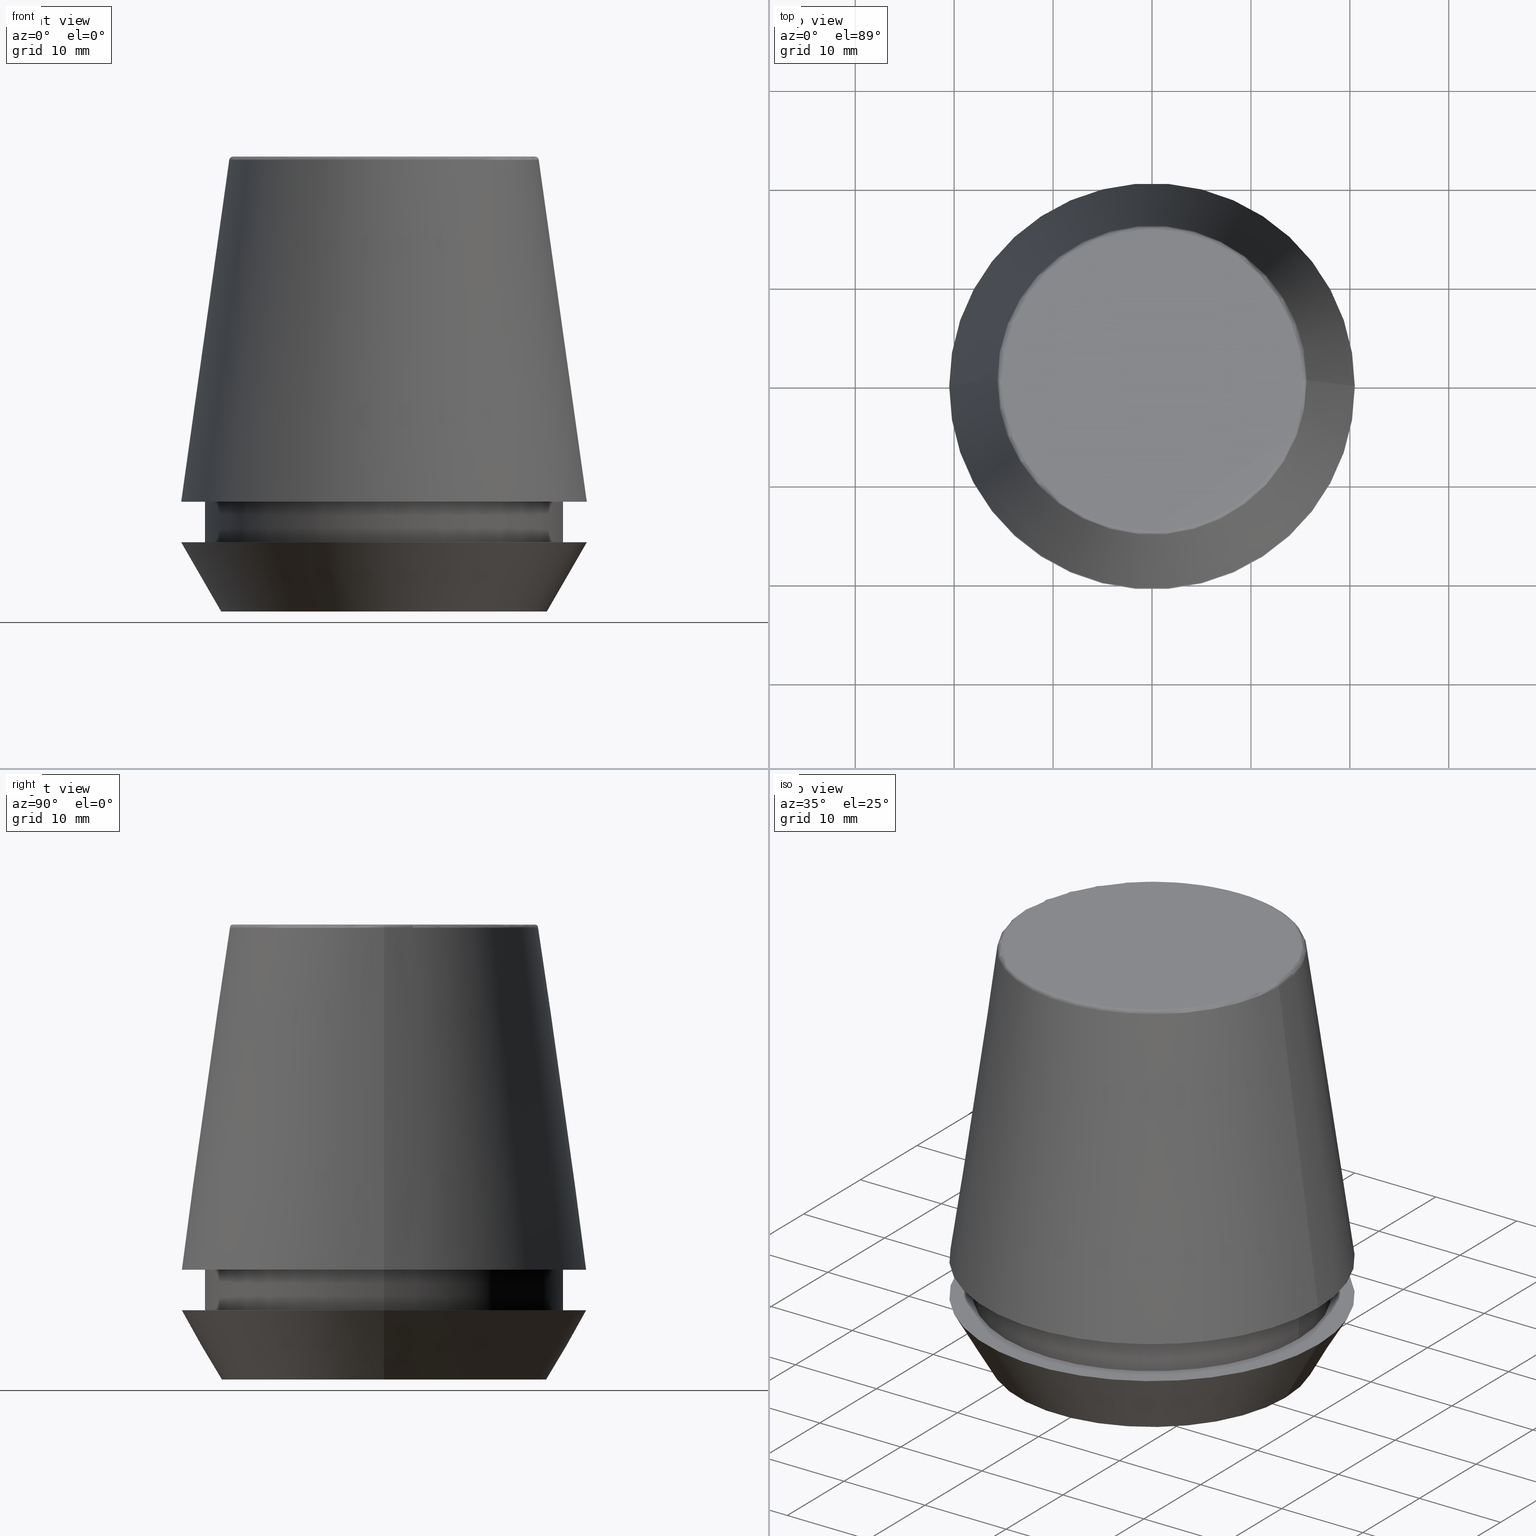
[diagram: canonical four-view strip — front | top / right | iso, engineering-drawing reading convention]
A machine part, canonical four-view strip (front | top / right | iso — engineering-drawing reading convention). The complete STEP part file that produces these views, byte-faithful:
ISO-10303-21;
HEADER;
FILE_DESCRIPTION (( 'STEP AP203' ),
    '1' );
FILE_NAME ('TAP COLLET ER 40G 25.0 X 20.0.STEP',
    '2019-04-10T04:23:19',
    ( '' ),
    ( '' ),
    'SwSTEP 2.0',
    'SolidWorks 2014',
    '' );
FILE_SCHEMA (( 'CONFIG_CONTROL_DESIGN' ));
ENDSEC;

DATA;
#1 = AXIS2_PLACEMENT_3D ( 'NONE', #111, #240, #364 ) ;
#2 = LINE ( 'NONE', #372, #235 ) ;
#3 = DATE_AND_TIME ( #81, #169 ) ;
#4 = EDGE_CURVE ( 'NONE', #14, #268, #61, .T. ) ;
#5 = CARTESIAN_POINT ( 'NONE',  ( 18.10000000000000100, 0.0000000000000000000, 6.999999999999999100 ) ) ;
#6 = AXIS2_PLACEMENT_3D ( 'NONE', #228, #216, #329 ) ;
#7 = CIRCLE ( 'NONE', #328, 15.64384277279740400 ) ;
#8 = CARTESIAN_POINT ( 'NONE',  ( 0.0000000000000000000, 20.50032537154048700, 11.09999999999999800 ) ) ;
#9 = ADVANCED_FACE ( 'NONE', ( #378 ), #363, .T. ) ;
#10 = PERSON_AND_ORGANIZATION_ROLE ( 'design_owner' ) ;
#11 = CIRCLE ( 'NONE', #359, 18.10000000000000100 ) ;
#12 = ORIENTED_EDGE ( 'NONE', *, *, #76, .F. ) ;
#13 = DIRECTION ( 'NONE',  ( -0.0000000000000000000, -0.0000000000000000000, 1.000000000000000000 ) ) ;
#14 = VERTEX_POINT ( 'NONE', #238 ) ;
#15 = EDGE_CURVE ( 'NONE', #303, #247, #224, .T. ) ;
#16 = PERSON_AND_ORGANIZATION ( #310, #353 ) ;
#17 = DIRECTION ( 'NONE',  ( 0.1391731009600587200, 1.704378926181473400E-017, -0.9902680687415712500 ) ) ;
#18 = CARTESIAN_POINT ( 'NONE',  ( -18.10000000000000500, 2.216610706456710000E-015, 11.09999999999999800 ) ) ;
#19 = ORIENTED_EDGE ( 'NONE', *, *, #321, .T. ) ;
#20 = APPROVAL ( #96, 'UNSPECIFIED' ) ;
#21 = UNCERTAINTY_MEASURE_WITH_UNIT (LENGTH_MEASURE( 1.000000000000000100E-005 ), #305, 'distance_accuracy_value', 'NONE');
#22 = CONICAL_SURFACE ( 'NONE', #142, 16.45854811567268100, 0.5235987755982921500 ) ;
#23 = ORIENTED_EDGE ( 'NONE', *, *, #121, .F. ) ;
#24 = ORIENTED_EDGE ( 'NONE', *, *, #133, .T. ) ;
#25 = ORIENTED_EDGE ( 'NONE', *, *, #381, .F. ) ;
#26 = PERSON_AND_ORGANIZATION ( #310, #353 ) ;
#27 = ORIENTED_EDGE ( 'NONE', *, *, #15, .F. ) ;
#28 =( NAMED_UNIT ( * ) PLANE_ANGLE_UNIT ( ) SI_UNIT ( $, .RADIAN. ) );
#29 = CARTESIAN_POINT ( 'NONE',  ( -15.24773554530077600, 1.867309052979791600E-015, 45.60000000000000100 ) ) ;
#30 = DIRECTION ( 'NONE',  ( 1.000000000000000000, 0.0000000000000000000, 0.0000000000000000000 ) ) ;
#31 = FACE_OUTER_BOUND ( 'NONE', #335, .T. ) ;
#32 = CC_DESIGN_APPROVAL ( #20, ( #132 ) ) ;
#33 = APPLICATION_CONTEXT ( 'configuration controlled 3d designs of mechanical parts and assemblies' ) ;
#34 = PRODUCT_DEFINITION_FORMATION_WITH_SPECIFIED_SOURCE ( 'ANY', '', #128, .NOT_KNOWN. ) ;
#35 = DIRECTION ( 'NONE',  ( -0.0000000000000000000, -0.0000000000000000000, 1.000000000000000000 ) ) ;
#36 = CIRCLE ( 'NONE', #182, 15.24773554530077600 ) ;
#37 = AXIS2_PLACEMENT_3D ( 'NONE', #349, #293, #269 ) ;
#38 = COORDINATED_UNIVERSAL_TIME_OFFSET ( 5, 30, .AHEAD. ) ;
#39 = ORIENTED_EDGE ( 'NONE', *, *, #143, .T. ) ;
#40 = CARTESIAN_POINT ( 'NONE',  ( 20.50032537154048700, 2.510565784773633700E-015, 11.09999999999999800 ) ) ;
#41 = CARTESIAN_POINT ( 'NONE',  ( -20.50032537154048700, 0.0000000000000000000, 11.09999999999999800 ) ) ;
#42 = CC_DESIGN_DATE_AND_TIME_ASSIGNMENT ( #55, #285, ( #132 ) ) ;
#43 = CIRCLE ( 'NONE', #210, 16.45854811567268100 ) ;
#44 = CARTESIAN_POINT ( 'NONE',  ( 15.24773554530077600, 0.0000000000000000000, 45.60000000000000100 ) ) ;
#45 = CC_DESIGN_PERSON_AND_ORGANIZATION_ASSIGNMENT ( #377, #46, ( #132 ) ) ;
#46 = PERSON_AND_ORGANIZATION_ROLE ( 'classification_officer' ) ;
#47 = ORIENTED_EDGE ( 'NONE', *, *, #321, .F. ) ;
#48 = CC_DESIGN_SECURITY_CLASSIFICATION ( #132, ( #34 ) ) ;
#49 = CALENDAR_DATE ( 2019, 10, 4 ) ;
#50 = CARTESIAN_POINT ( 'NONE',  ( 0.0000000000000000000, 0.0000000000000000000, 46.00000000000000000 ) ) ;
#51 = LINE ( 'NONE', #233, #361 ) ;
#52 = CIRCLE ( 'NONE', #357, 18.10000000000000500 ) ;
#53 = EDGE_LOOP ( 'NONE', ( #259, #258, #345, #250 ) ) ;
#54 = EDGE_CURVE ( 'NONE', #167, #322, #52, .T. ) ;
#55 = DATE_AND_TIME ( #134, #219 ) ;
#56 = DIRECTION ( 'NONE',  ( 1.000000000000000000, 0.0000000000000000000, 0.0000000000000000000 ) ) ;
#57 = DIRECTION ( 'NONE',  ( 1.000000000000000000, 0.0000000000000000000, 0.0000000000000000000 ) ) ;
#58 = CYLINDRICAL_SURFACE ( 'NONE', #261, 18.10000000000000500 ) ;
#59 = CIRCLE ( 'NONE', #373, 0.3999999999999975800 ) ;
#60 = DIRECTION ( 'NONE',  ( 1.000000000000000000, 0.0000000000000000000, 0.0000000000000000000 ) ) ;
#61 = CIRCLE ( 'NONE', #386, 15.24773554530077600 ) ;
#62 = EDGE_CURVE ( 'NONE', #354, #213, #158, .T. ) ;
#63 = SHAPE_DEFINITION_REPRESENTATION ( #325, #341 ) ;
#64 = EDGE_LOOP ( 'NONE', ( #382, #175 ) ) ;
#65 = VERTEX_POINT ( 'NONE', #225 ) ;
#66 = ADVANCED_FACE ( 'NONE', ( #141 ), #350, .F. ) ;
#67 = DIRECTION ( 'NONE',  ( 0.0000000000000000000, 0.0000000000000000000, -1.000000000000000000 ) ) ;
#68 = DIRECTION ( 'NONE',  ( -0.0000000000000000000, -0.0000000000000000000, 1.000000000000000000 ) ) ;
#69 = DIRECTION ( 'NONE',  ( 1.000000000000000000, 0.0000000000000000000, 0.0000000000000000000 ) ) ;
#70 = DATE_TIME_ROLE ( 'creation_date' ) ;
#71 = APPROVAL_ROLE ( '' ) ;
#72 = CARTESIAN_POINT ( 'NONE',  ( 0.0000000000000000000, 20.50000000000000000, 7.000000000000002700 ) ) ;
#73 = ORIENTED_EDGE ( 'NONE', *, *, #367, .F. ) ;
#74 = CARTESIAN_POINT ( 'NONE',  ( 0.0000000000000000000, 0.0000000000000000000, 0.0000000000000000000 ) ) ;
#75 = DIRECTION ( 'NONE',  ( 1.000000000000000000, 0.0000000000000000000, 0.0000000000000000000 ) ) ;
#76 = EDGE_CURVE ( 'NONE', #120, #237, #7, .T. ) ;
#77 = CIRCLE ( 'NONE', #106, 0.3999999999999975800 ) ;
#78 = DIRECTION ( 'NONE',  ( 0.0000000000000000000, -1.000000000000000000, 0.0000000000000000000 ) ) ;
#79 = ORIENTED_EDGE ( 'NONE', *, *, #201, .T. ) ;
#80 = ORIENTED_EDGE ( 'NONE', *, *, #188, .T. ) ;
#81 = CALENDAR_DATE ( 2019, 10, 4 ) ;
#82 = ORIENTED_EDGE ( 'NONE', *, *, #85, .T. ) ;
#83 = CARTESIAN_POINT ( 'NONE',  ( -16.45854811567268100, 2.015590826847124800E-015, 0.0000000000000000000 ) ) ;
#84 = DIRECTION ( 'NONE',  ( -0.0000000000000000000, -0.0000000000000000000, 1.000000000000000000 ) ) ;
#85 = EDGE_CURVE ( 'NONE', #120, #268, #59, .T. ) ;
#86 = FACE_OUTER_BOUND ( 'NONE', #358, .T. ) ;
#87 = ORIENTED_EDGE ( 'NONE', *, *, #85, .F. ) ;
#88 =( GEOMETRIC_REPRESENTATION_CONTEXT ( 3 ) GLOBAL_UNCERTAINTY_ASSIGNED_CONTEXT ( ( #21 ) ) GLOBAL_UNIT_ASSIGNED_CONTEXT ( ( #305, #28, #344 ) ) REPRESENTATION_CONTEXT ( 'NONE', 'WORKASPACE' ) );
#89 = DATE_AND_TIME ( #177, #263 ) ;
#90 = EDGE_LOOP ( 'NONE', ( #260, #368 ) ) ;
#91 = DIRECTION ( 'NONE',  ( 0.0000000000000000000, 0.0000000000000000000, -1.000000000000000000 ) ) ;
#92 = EDGE_CURVE ( 'NONE', #324, #213, #108, .T. ) ;
#93 = CIRCLE ( 'NONE', #94, 20.50032537154048700 ) ;
#94 = AXIS2_PLACEMENT_3D ( 'NONE', #160, #340, #193 ) ;
#95 = APPLICATION_CONTEXT ( 'configuration controlled 3d designs of mechanical parts and assemblies' ) ;
#96 = APPROVAL_STATUS ( 'not_yet_approved' ) ;
#97 = ORIENTED_EDGE ( 'NONE', *, *, #133, .F. ) ;
#98 = ORIENTED_EDGE ( 'NONE', *, *, #362, .F. ) ;
#99 = DIRECTION ( 'NONE',  ( -0.0000000000000000000, -0.0000000000000000000, 1.000000000000000000 ) ) ;
#100 = APPROVAL_DATE_TIME ( #186, #287 ) ;
#101 = ORIENTED_EDGE ( 'NONE', *, *, #143, .F. ) ;
#102 = DIRECTION ( 'NONE',  ( 1.000000000000000000, 0.0000000000000000000, 0.0000000000000000000 ) ) ;
#103 = DIRECTION ( 'NONE',  ( 1.000000000000000000, 0.0000000000000000000, 0.0000000000000000000 ) ) ;
#104 = ADVANCED_FACE ( 'NONE', ( #295 ), #58, .T. ) ;
#105 = DESIGN_CONTEXT ( 'detailed design', #95, 'design' ) ;
#106 = AXIS2_PLACEMENT_3D ( 'NONE', #44, #78, #254 ) ;
#107 = CIRCLE ( 'NONE', #191, 20.50000000000000000 ) ;
#108 = LINE ( 'NONE', #83, #137 ) ;
#109 = AXIS2_PLACEMENT_3D ( 'NONE', #72, #67, #124 ) ;
#110 = APPROVAL_PERSON_ORGANIZATION ( #198, #287, #327 ) ;
#111 = CARTESIAN_POINT ( 'NONE',  ( 0.0000000000000000000, 0.0000000000000000000, 45.60000000000000100 ) ) ;
#112 = EDGE_CURVE ( 'NONE', #65, #304, #139, .T. ) ;
#113 = CARTESIAN_POINT ( 'NONE',  ( -15.24773554530077600, 1.891563625393435400E-015, 46.00000000000000000 ) ) ;
#114 = MANIFOLD_SOLID_BREP ( 'Revolve1', #232 ) ;
#115 = CARTESIAN_POINT ( 'NONE',  ( 0.0000000000000000000, 0.0000000000000000000, 6.999999999999999100 ) ) ;
#116 = FACE_OUTER_BOUND ( 'NONE', #64, .T. ) ;
#117 = CARTESIAN_POINT ( 'NONE',  ( 0.0000000000000000000, 0.0000000000000000000, 45.65566924038402900 ) ) ;
#118 = DIRECTION ( 'NONE',  ( 1.000000000000000000, 0.0000000000000000000, 0.0000000000000000000 ) ) ;
#119 = APPROVAL ( #360, 'UNSPECIFIED' ) ;
#120 = VERTEX_POINT ( 'NONE', #243 ) ;
#121 = EDGE_CURVE ( 'NONE', #268, #14, #36, .T. ) ;
#122 = LOCAL_TIME ( 9, 53, 19.00000000000000000, #211 ) ;
#123 = EDGE_LOOP ( 'NONE', ( #24, #82, #297, #73 ) ) ;
#124 = DIRECTION ( 'NONE',  ( -1.000000000000000000, 0.0000000000000000000, -0.0000000000000000000 ) ) ;
#125 = CARTESIAN_POINT ( 'NONE',  ( -16.45854811567268100, 2.263058382549599700E-015, 0.0000000000000000000 ) ) ;
#126 = CC_DESIGN_APPROVAL ( #119, ( #34 ) ) ;
#127 = CIRCLE ( 'NONE', #37, 16.45854811567268100 ) ;
#128 = PRODUCT ( 'TAP COLLET ER 40G 25.0 X 20.0', 'TAP COLLET ER 40G 25.0 X 20.0', '', ( #332 ) ) ;
#129 = APPROVAL_ROLE ( '' ) ;
#130 = DIRECTION ( 'NONE',  ( 1.000000000000000000, 0.0000000000000000000, 0.0000000000000000000 ) ) ;
#131 = ADVANCED_FACE ( 'NONE', ( #222 ), #371, .T. ) ;
#132 = SECURITY_CLASSIFICATION ( '', '', #256 ) ;
#133 = EDGE_CURVE ( 'NONE', #237, #120, #217, .T. ) ;
#134 = CALENDAR_DATE ( 2019, 10, 4 ) ;
#135 = ORIENTED_EDGE ( 'NONE', *, *, #381, .T. ) ;
#136 = CARTESIAN_POINT ( 'NONE',  ( 0.0000000000000000000, 0.0000000000000000000, 46.00000000000000000 ) ) ;
#137 = VECTOR ( 'NONE', #242, 1000.000000000000000 ) ;
#138 = CARTESIAN_POINT ( 'NONE',  ( 0.0000000000000000000, 0.0000000000000000000, 7.000000000000006200 ) ) ;
#139 = CIRCLE ( 'NONE', #286, 18.10000000000000100 ) ;
#140 = ADVANCED_FACE ( 'NONE', ( #294 ), #207, .T. ) ;
#141 = FACE_OUTER_BOUND ( 'NONE', #90, .T. ) ;
#142 = AXIS2_PLACEMENT_3D ( 'NONE', #356, #339, #154 ) ;
#143 = EDGE_CURVE ( 'NONE', #237, #247, #51, .T. ) ;
#144 = CIRCLE ( 'NONE', #380, 18.10000000000000500 ) ;
#145 = EDGE_CURVE ( 'NONE', #324, #313, #127, .T. ) ;
#146 = ORIENTED_EDGE ( 'NONE', *, *, #54, .T. ) ;
#147 = DIRECTION ( 'NONE',  ( 0.0000000000000000000, 0.0000000000000000000, 1.000000000000000000 ) ) ;
#148 = CARTESIAN_POINT ( 'NONE',  ( 0.0000000000000000000, 0.0000000000000000000, 11.09999999999999800 ) ) ;
#149 = DIRECTION ( 'NONE',  ( -1.000000000000000000, 1.224646799147353900E-016, 0.0000000000000000000 ) ) ;
#150 = CARTESIAN_POINT ( 'NONE',  ( -20.50032537154048700, 0.0000000000000000000, 11.09999999999999800 ) ) ;
#151 = LINE ( 'NONE', #150, #302 ) ;
#152 = ORIENTED_EDGE ( 'NONE', *, *, #370, .F. ) ;
#153 = CC_DESIGN_DATE_AND_TIME_ASSIGNMENT ( #89, #70, ( #156 ) ) ;
#154 = DIRECTION ( 'NONE',  ( 1.000000000000000000, 0.0000000000000000000, 0.0000000000000000000 ) ) ;
#155 = APPLICATION_PROTOCOL_DEFINITION ( 'international standard', 'config_control_design', 1994, #33 ) ;
#156 = PRODUCT_DEFINITION ( 'UNKNOWN', '', #34, #105 ) ;
#157 = DIRECTION ( 'NONE',  ( 1.000000000000000000, 0.0000000000000000000, 0.0000000000000000000 ) ) ;
#158 = CIRCLE ( 'NONE', #171, 20.50000000000000000 ) ;
#159 = CC_DESIGN_PERSON_AND_ORGANIZATION_ASSIGNMENT ( #276, #10, ( #128 ) ) ;
#160 = CARTESIAN_POINT ( 'NONE',  ( 0.0000000000000000000, 0.0000000000000000000, 11.09999999999999800 ) ) ;
#161 = PERSON_AND_ORGANIZATION_ROLE ( 'creator' ) ;
#162 = PRODUCT_RELATED_PRODUCT_CATEGORY ( 'detail', '', ( #128 ) ) ;
#163 = CONICAL_SURFACE ( 'NONE', #336, 20.50032537154048700, 0.1396263401595396200 ) ;
#164 = CARTESIAN_POINT ( 'NONE',  ( -20.50000000000000000, 2.510525938252074100E-015, 7.000000000000006200 ) ) ;
#165 = EDGE_LOOP ( 'NONE', ( #87, #187, #277, #23 ) ) ;
#166 = AXIS2_PLACEMENT_3D ( 'NONE', #229, #147, #180 ) ;
#167 = VERTEX_POINT ( 'NONE', #18 ) ;
#168 = DIRECTION ( 'NONE',  ( 1.000000000000000000, 0.0000000000000000000, 0.0000000000000000000 ) ) ;
#169 = LOCAL_TIME ( 9, 53, 19.00000000000000000, #249 ) ;
#170 = CC_DESIGN_PERSON_AND_ORGANIZATION_ASSIGNMENT ( #239, #226, ( #34 ) ) ;
#171 = AXIS2_PLACEMENT_3D ( 'NONE', #138, #206, #57 ) ;
#172 = DIRECTION ( 'NONE',  ( -0.0000000000000000000, -0.0000000000000000000, 1.000000000000000000 ) ) ;
#173 = FACE_OUTER_BOUND ( 'NONE', #316, .T. ) ;
#174 = ORIENTED_EDGE ( 'NONE', *, *, #376, .F. ) ;
#175 = ORIENTED_EDGE ( 'NONE', *, *, #145, .F. ) ;
#176 = AXIS2_PLACEMENT_3D ( 'NONE', #8, #307, #69 ) ;
#177 = CALENDAR_DATE ( 2019, 10, 4 ) ;
#178 = DIRECTION ( 'NONE',  ( 0.0000000000000000000, -0.0000000000000000000, 1.000000000000000000 ) ) ;
#179 = CARTESIAN_POINT ( 'NONE',  ( 0.0000000000000000000, 0.0000000000000000000, 46.00000000000000000 ) ) ;
#180 = DIRECTION ( 'NONE',  ( 1.000000000000000000, 0.0000000000000000000, 0.0000000000000000000 ) ) ;
#181 = TOROIDAL_SURFACE ( 'NONE', #1, 15.24773554530077600, 0.3999999999999991900 ) ;
#182 = AXIS2_PLACEMENT_3D ( 'NONE', #262, #172, #102 ) ;
#183 = EDGE_LOOP ( 'NONE', ( #199, #79 ) ) ;
#184 = CC_DESIGN_APPROVAL ( #287, ( #156 ) ) ;
#185 = EDGE_LOOP ( 'NONE', ( #319, #292, #366, #47 ) ) ;
#186 = DATE_AND_TIME ( #270, #346 ) ;
#187 = ORIENTED_EDGE ( 'NONE', *, *, #76, .T. ) ;
#188 = EDGE_CURVE ( 'NONE', #313, #354, #283, .T. ) ;
#189 = DIRECTION ( 'NONE',  ( 1.000000000000000000, 0.0000000000000000000, 0.0000000000000000000 ) ) ;
#190 = CARTESIAN_POINT ( 'NONE',  ( 0.0000000000000000000, 0.0000000000000000000, 0.0000000000000000000 ) ) ;
#191 = AXIS2_PLACEMENT_3D ( 'NONE', #248, #309, #130 ) ;
#192 = APPLICATION_PROTOCOL_DEFINITION ( 'international standard', 'config_control_design', 1994, #95 ) ;
#193 = DIRECTION ( 'NONE',  ( 1.000000000000000000, 0.0000000000000000000, 0.0000000000000000000 ) ) ;
#194 = FACE_OUTER_BOUND ( 'NONE', #53, .T. ) ;
#195 = DIRECTION ( 'NONE',  ( -0.0000000000000000000, -0.0000000000000000000, 1.000000000000000000 ) ) ;
#196 = PERSON_AND_ORGANIZATION_ROLE ( 'design_supplier' ) ;
#197 = EDGE_CURVE ( 'NONE', #313, #324, #43, .T. ) ;
#198 = PERSON_AND_ORGANIZATION ( #310, #353 ) ;
#199 = ORIENTED_EDGE ( 'NONE', *, *, #62, .T. ) ;
#200 = ADVANCED_FACE ( 'NONE', ( #116 ), #375, .F. ) ;
#201 = EDGE_CURVE ( 'NONE', #213, #354, #107, .T. ) ;
#202 = DIRECTION ( 'NONE',  ( 1.000000000000000000, 0.0000000000000000000, 0.0000000000000000000 ) ) ;
#203 = DIRECTION ( 'NONE',  ( -0.0000000000000000000, -0.0000000000000000000, 1.000000000000000000 ) ) ;
#204 = EDGE_LOOP ( 'NONE', ( #101, #12, #135, #299 ) ) ;
#205 = ADVANCED_FACE ( 'NONE', ( #194 ), #22, .T. ) ;
#206 = DIRECTION ( 'NONE',  ( -0.0000000000000000000, -0.0000000000000000000, 1.000000000000000000 ) ) ;
#207 = CYLINDRICAL_SURFACE ( 'NONE', #300, 18.10000000000000500 ) ;
#208 = ADVANCED_FACE ( 'NONE', ( #275, #343 ), #265, .F. ) ;
#209 = AXIS2_PLACEMENT_3D ( 'NONE', #379, #203, #168 ) ;
#210 = AXIS2_PLACEMENT_3D ( 'NONE', #212, #241, #56 ) ;
#211 = COORDINATED_UNIVERSAL_TIME_OFFSET ( 5, 30, .AHEAD. ) ;
#212 = CARTESIAN_POINT ( 'NONE',  ( 0.0000000000000000000, 0.0000000000000000000, 0.0000000000000000000 ) ) ;
#213 = VERTEX_POINT ( 'NONE', #164 ) ;
#214 = ADVANCED_FACE ( 'NONE', ( #330 ), #181, .T. ) ;
#215 = AXIS2_PLACEMENT_3D ( 'NONE', #301, #387, #75 ) ;
#216 = DIRECTION ( 'NONE',  ( 0.0000000000000000000, 0.0000000000000000000, -1.000000000000000000 ) ) ;
#217 = CIRCLE ( 'NONE', #209, 15.64384277279740400 ) ;
#218 = DIRECTION ( 'NONE',  ( 1.000000000000000000, 0.0000000000000000000, 0.0000000000000000000 ) ) ;
#219 = LOCAL_TIME ( 9, 53, 19.00000000000000000, #296 ) ;
#220 = EDGE_LOOP ( 'NONE', ( #152, #271, #19, #348 ) ) ;
#221 = CARTESIAN_POINT ( 'NONE',  ( 16.45854811567268100, 0.0000000000000000000, 0.0000000000000000000 ) ) ;
#222 = FACE_OUTER_BOUND ( 'NONE', #123, .T. ) ;
#223 = CARTESIAN_POINT ( 'NONE',  ( 20.50000000000000000, 0.0000000000000000000, 7.000000000000006200 ) ) ;
#224 = CIRCLE ( 'NONE', #342, 20.50032537154048700 ) ;
#225 = CARTESIAN_POINT ( 'NONE',  ( -18.10000000000000100, 2.216610706456709600E-015, 6.999999999999999100 ) ) ;
#226 = PERSON_AND_ORGANIZATION_ROLE ( 'creator' ) ;
#227 = DIRECTION ( 'NONE',  ( 1.000000000000000000, 0.0000000000000000000, 0.0000000000000000000 ) ) ;
#228 = CARTESIAN_POINT ( 'NONE',  ( 0.0000000000000000000, 15.24773554530077600, 46.00000000000000000 ) ) ;
#229 = CARTESIAN_POINT ( 'NONE',  ( 0.0000000000000000000, 0.0000000000000000000, 0.0000000000000000000 ) ) ;
#230 = ORIENTED_EDGE ( 'NONE', *, *, #145, .T. ) ;
#231 = DIRECTION ( 'NONE',  ( 1.000000000000000000, 0.0000000000000000000, 0.0000000000000000000 ) ) ;
#232 = CLOSED_SHELL ( 'NONE', ( #131, #315, #140, #205, #200, #279, #208, #104, #347, #9, #214, #66 ) ) ;
#233 = CARTESIAN_POINT ( 'NONE',  ( 20.50032537154048700, 2.510565784773633700E-015, 11.09999999999999800 ) ) ;
#234 = AXIS2_PLACEMENT_3D ( 'NONE', #190, #384, #157 ) ;
#235 = VECTOR ( 'NONE', #282, 1000.000000000000000 ) ;
#236 = ORIENTED_EDGE ( 'NONE', *, *, #112, .F. ) ;
#237 = VERTEX_POINT ( 'NONE', #369 ) ;
#238 = CARTESIAN_POINT ( 'NONE',  ( 15.24773554530077600, 0.0000000000000000000, 46.00000000000000000 ) ) ;
#239 = PERSON_AND_ORGANIZATION ( #310, #353 ) ;
#240 = DIRECTION ( 'NONE',  ( -0.0000000000000000000, -0.0000000000000000000, 1.000000000000000000 ) ) ;
#241 = DIRECTION ( 'NONE',  ( -0.0000000000000000000, -0.0000000000000000000, 1.000000000000000000 ) ) ;
#242 = DIRECTION ( 'NONE',  ( -0.4999999999999941700, 6.123233995736694500E-017, 0.8660254037844420400 ) ) ;
#243 = CARTESIAN_POINT ( 'NONE',  ( -15.64384277279740400, 0.0000000000000000000, 45.65566924038402900 ) ) ;
#244 = LINE ( 'NONE', #281, #267 ) ;
#245 = AXIS2_PLACEMENT_3D ( 'NONE', #74, #178, #273 ) ;
#246 = DIRECTION ( 'NONE',  ( 0.0000000000000000000, 0.0000000000000000000, -1.000000000000000000 ) ) ;
#247 = VERTEX_POINT ( 'NONE', #40 ) ;
#248 = CARTESIAN_POINT ( 'NONE',  ( 0.0000000000000000000, 0.0000000000000000000, 7.000000000000006200 ) ) ;
#249 = COORDINATED_UNIVERSAL_TIME_OFFSET ( 5, 30, .AHEAD. ) ;
#250 = ORIENTED_EDGE ( 'NONE', *, *, #188, .F. ) ;
#251 = DIRECTION ( 'NONE',  ( -0.1391731009600587200, 0.0000000000000000000, -0.9902680687415712500 ) ) ;
#252 = CC_DESIGN_PERSON_AND_ORGANIZATION_ASSIGNMENT ( #311, #196, ( #34 ) ) ;
#253 = DIRECTION ( 'NONE',  ( -0.0000000000000000000, -0.0000000000000000000, 1.000000000000000000 ) ) ;
#254 = DIRECTION ( 'NONE',  ( 0.0000000000000000000, 0.0000000000000000000, -1.000000000000000000 ) ) ;
#255 = FACE_BOUND ( 'NONE', #264, .T. ) ;
#256 = SECURITY_CLASSIFICATION_LEVEL ( 'unclassified' ) ;
#257 = APPROVAL_STATUS ( 'not_yet_approved' ) ;
#258 = ORIENTED_EDGE ( 'NONE', *, *, #92, .T. ) ;
#259 = ORIENTED_EDGE ( 'NONE', *, *, #197, .T. ) ;
#260 = ORIENTED_EDGE ( 'NONE', *, *, #4, .T. ) ;
#261 = AXIS2_PLACEMENT_3D ( 'NONE', #179, #13, #60 ) ;
#262 = CARTESIAN_POINT ( 'NONE',  ( 0.0000000000000000000, 0.0000000000000000000, 46.00000000000000000 ) ) ;
#263 = LOCAL_TIME ( 9, 53, 19.00000000000000000, #334 ) ;
#264 = EDGE_LOOP ( 'NONE', ( #288, #146 ) ) ;
#265 = PLANE ( 'NONE',  #109 ) ;
#266 = DIRECTION ( 'NONE',  ( 0.4999999999999941700, 0.0000000000000000000, 0.8660254037844420400 ) ) ;
#267 = VECTOR ( 'NONE', #68, 1000.000000000000000 ) ;
#268 = VERTEX_POINT ( 'NONE', #113 ) ;
#269 = DIRECTION ( 'NONE',  ( 1.000000000000000000, 0.0000000000000000000, 0.0000000000000000000 ) ) ;
#270 = CALENDAR_DATE ( 2019, 10, 4 ) ;
#271 = ORIENTED_EDGE ( 'NONE', *, *, #112, .T. ) ;
#272 = ORIENTED_EDGE ( 'NONE', *, *, #92, .F. ) ;
#273 = DIRECTION ( 'NONE',  ( 1.000000000000000000, 0.0000000000000000000, 0.0000000000000000000 ) ) ;
#274 = DIRECTION ( 'NONE',  ( 1.224646799147353200E-016, 1.000000000000000000, 0.0000000000000000000 ) ) ;
#275 = FACE_BOUND ( 'NONE', #333, .T. ) ;
#276 = PERSON_AND_ORGANIZATION ( #310, #353 ) ;
#277 = ORIENTED_EDGE ( 'NONE', *, *, #367, .T. ) ;
#278 = APPROVAL_DATE_TIME ( #355, #20 ) ;
#279 = ADVANCED_FACE ( 'NONE', ( #31 ), #320, .T. ) ;
#280 = CC_DESIGN_PERSON_AND_ORGANIZATION_ASSIGNMENT ( #26, #161, ( #156 ) ) ;
#281 = CARTESIAN_POINT ( 'NONE',  ( 18.10000000000000500, 0.0000000000000000000, 46.00000000000000000 ) ) ;
#282 = DIRECTION ( 'NONE',  ( -0.0000000000000000000, -0.0000000000000000000, 1.000000000000000000 ) ) ;
#283 = LINE ( 'NONE', #290, #351 ) ;
#284 = CARTESIAN_POINT ( 'NONE',  ( 0.0000000000000000000, 0.0000000000000000000, 11.09999999999999800 ) ) ;
#285 = DATE_TIME_ROLE ( 'classification_date' ) ;
#286 = AXIS2_PLACEMENT_3D ( 'NONE', #115, #326, #189 ) ;
#287 = APPROVAL ( #257, 'UNSPECIFIED' ) ;
#288 = ORIENTED_EDGE ( 'NONE', *, *, #383, .T. ) ;
#289 = CARTESIAN_POINT ( 'NONE',  ( 0.0000000000000000000, 0.0000000000000000000, 11.09999999999999800 ) ) ;
#290 = CARTESIAN_POINT ( 'NONE',  ( 16.45854811567268100, 0.0000000000000000000, 0.0000000000000000000 ) ) ;
#291 = APPROVAL_PERSON_ORGANIZATION ( #365, #20, #71 ) ;
#292 = ORIENTED_EDGE ( 'NONE', *, *, #370, .T. ) ;
#293 = DIRECTION ( 'NONE',  ( -0.0000000000000000000, -0.0000000000000000000, 1.000000000000000000 ) ) ;
#294 = FACE_OUTER_BOUND ( 'NONE', #185, .T. ) ;
#295 = FACE_OUTER_BOUND ( 'NONE', #220, .T. ) ;
#296 = COORDINATED_UNIVERSAL_TIME_OFFSET ( 5, 30, .AHEAD. ) ;
#297 = ORIENTED_EDGE ( 'NONE', *, *, #4, .F. ) ;
#298 = ORIENTED_EDGE ( 'NONE', *, *, #201, .F. ) ;
#299 = ORIENTED_EDGE ( 'NONE', *, *, #15, .T. ) ;
#300 = AXIS2_PLACEMENT_3D ( 'NONE', #136, #317, #103 ) ;
#301 = CARTESIAN_POINT ( 'NONE',  ( 0.0000000000000000000, 0.0000000000000000000, 45.60000000000000100 ) ) ;
#302 = VECTOR ( 'NONE', #251, 1000.000000000000000 ) ;
#303 = VERTEX_POINT ( 'NONE', #41 ) ;
#304 = VERTEX_POINT ( 'NONE', #5 ) ;
#305 =( LENGTH_UNIT ( ) NAMED_UNIT ( * ) SI_UNIT ( .MILLI., .METRE. ) );
#306 = DIRECTION ( 'NONE',  ( -1.000000000000000000, 0.0000000000000000000, 0.0000000000000000000 ) ) ;
#307 = DIRECTION ( 'NONE',  ( 0.0000000000000000000, -0.0000000000000000000, 1.000000000000000000 ) ) ;
#308 = CARTESIAN_POINT ( 'NONE',  ( 0.0000000000000000000, 0.0000000000000000000, 6.999999999999999100 ) ) ;
#309 = DIRECTION ( 'NONE',  ( -0.0000000000000000000, -0.0000000000000000000, 1.000000000000000000 ) ) ;
#310 = PERSON ( 'UNSPECIFIED', 'UNSPECIFIED', 'UNSPECIFIED', ('UNSPECIFIED'), ('UNSPECIFIED'), ('UNSPECIFIED') ) ;
#311 = PERSON_AND_ORGANIZATION ( #310, #353 ) ;
#312 = CARTESIAN_POINT ( 'NONE',  ( 0.0000000000000000000, 0.0000000000000000000, 11.09999999999999800 ) ) ;
#313 = VERTEX_POINT ( 'NONE', #221 ) ;
#314 = DIRECTION ( 'NONE',  ( -0.0000000000000000000, -0.0000000000000000000, 1.000000000000000000 ) ) ;
#315 = ADVANCED_FACE ( 'NONE', ( #173 ), #163, .T. ) ;
#316 = EDGE_LOOP ( 'NONE', ( #97, #39, #331, #25 ) ) ;
#317 = DIRECTION ( 'NONE',  ( -0.0000000000000000000, -0.0000000000000000000, 1.000000000000000000 ) ) ;
#318 = APPROVAL_DATE_TIME ( #3, #119 ) ;
#319 = ORIENTED_EDGE ( 'NONE', *, *, #376, .T. ) ;
#320 = CONICAL_SURFACE ( 'NONE', #234, 16.45854811567268100, 0.5235987755982921500 ) ;
#321 = EDGE_CURVE ( 'NONE', #304, #322, #244, .T. ) ;
#322 = VERTEX_POINT ( 'NONE', #338 ) ;
#323 = APPROVAL_PERSON_ORGANIZATION ( #16, #119, #129 ) ;
#324 = VERTEX_POINT ( 'NONE', #125 ) ;
#325 = PRODUCT_DEFINITION_SHAPE ( 'NONE', 'NONE',  #156 ) ;
#326 = DIRECTION ( 'NONE',  ( -0.0000000000000000000, -0.0000000000000000000, 1.000000000000000000 ) ) ;
#327 = APPROVAL_ROLE ( '' ) ;
#328 = AXIS2_PLACEMENT_3D ( 'NONE', #117, #84, #218 ) ;
#329 = DIRECTION ( 'NONE',  ( -1.000000000000000000, 0.0000000000000000000, -0.0000000000000000000 ) ) ;
#330 = FACE_OUTER_BOUND ( 'NONE', #165, .T. ) ;
#331 = ORIENTED_EDGE ( 'NONE', *, *, #362, .T. ) ;
#332 = MECHANICAL_CONTEXT ( 'NONE', #33, 'mechanical' ) ;
#333 = EDGE_LOOP ( 'NONE', ( #174, #236 ) ) ;
#334 = COORDINATED_UNIVERSAL_TIME_OFFSET ( 5, 30, .AHEAD. ) ;
#335 = EDGE_LOOP ( 'NONE', ( #272, #230, #80, #298 ) ) ;
#336 = AXIS2_PLACEMENT_3D ( 'NONE', #337, #91, #306 ) ;
#337 = CARTESIAN_POINT ( 'NONE',  ( 0.0000000000000000000, 0.0000000000000000000, 11.09999999999999800 ) ) ;
#338 = CARTESIAN_POINT ( 'NONE',  ( 18.10000000000000500, 0.0000000000000000000, 11.09999999999999800 ) ) ;
#339 = DIRECTION ( 'NONE',  ( -0.0000000000000000000, -0.0000000000000000000, 1.000000000000000000 ) ) ;
#340 = DIRECTION ( 'NONE',  ( -0.0000000000000000000, -0.0000000000000000000, 1.000000000000000000 ) ) ;
#341 = ADVANCED_BREP_SHAPE_REPRESENTATION ( 'TAP COLLET ER 40G 25.0 X 20.0', ( #114, #166 ), #88 ) ;
#342 = AXIS2_PLACEMENT_3D ( 'NONE', #289, #99, #202 ) ;
#343 = FACE_OUTER_BOUND ( 'NONE', #183, .T. ) ;
#344 =( NAMED_UNIT ( * ) SI_UNIT ( $, .STERADIAN. ) SOLID_ANGLE_UNIT ( ) );
#345 = ORIENTED_EDGE ( 'NONE', *, *, #62, .F. ) ;
#346 = LOCAL_TIME ( 9, 53, 19.00000000000000000, #38 ) ;
#347 = ADVANCED_FACE ( 'NONE', ( #86, #255 ), #385, .F. ) ;
#348 = ORIENTED_EDGE ( 'NONE', *, *, #54, .F. ) ;
#349 = CARTESIAN_POINT ( 'NONE',  ( 0.0000000000000000000, 0.0000000000000000000, 0.0000000000000000000 ) ) ;
#350 = PLANE ( 'NONE',  #6 ) ;
#351 = VECTOR ( 'NONE', #266, 1000.000000000000000 ) ;
#352 = AXIS2_PLACEMENT_3D ( 'NONE', #148, #246, #374 ) ;
#353 = ORGANIZATION ( 'UNSPECIFIED', 'UNSPECIFIED', '' ) ;
#354 = VERTEX_POINT ( 'NONE', #223 ) ;
#355 = DATE_AND_TIME ( #49, #122 ) ;
#356 = CARTESIAN_POINT ( 'NONE',  ( 0.0000000000000000000, 0.0000000000000000000, 0.0000000000000000000 ) ) ;
#357 = AXIS2_PLACEMENT_3D ( 'NONE', #312, #314, #231 ) ;
#358 = EDGE_LOOP ( 'NONE', ( #27, #98 ) ) ;
#359 = AXIS2_PLACEMENT_3D ( 'NONE', #308, #35, #118 ) ;
#360 = APPROVAL_STATUS ( 'not_yet_approved' ) ;
#361 = VECTOR ( 'NONE', #17, 1000.000000000000000 ) ;
#362 = EDGE_CURVE ( 'NONE', #247, #303, #93, .T. ) ;
#363 = CONICAL_SURFACE ( 'NONE', #352, 20.50032537154048700, 0.1396263401595396200 ) ;
#364 = DIRECTION ( 'NONE',  ( 1.000000000000000000, 0.0000000000000000000, 0.0000000000000000000 ) ) ;
#365 = PERSON_AND_ORGANIZATION ( #310, #353 ) ;
#366 = ORIENTED_EDGE ( 'NONE', *, *, #383, .F. ) ;
#367 = EDGE_CURVE ( 'NONE', #237, #14, #77, .T. ) ;
#368 = ORIENTED_EDGE ( 'NONE', *, *, #121, .T. ) ;
#369 = CARTESIAN_POINT ( 'NONE',  ( 15.64384277279740400, 2.213191991290356800E-015, 45.65566924038402900 ) ) ;
#370 = EDGE_CURVE ( 'NONE', #65, #167, #2, .T. ) ;
#371 = TOROIDAL_SURFACE ( 'NONE', #215, 15.24773554530077600, 0.3999999999999991900 ) ;
#372 = CARTESIAN_POINT ( 'NONE',  ( -18.10000000000000500, 2.216610706456710000E-015, 46.00000000000000000 ) ) ;
#373 = AXIS2_PLACEMENT_3D ( 'NONE', #29, #274, #149 ) ;
#374 = DIRECTION ( 'NONE',  ( -1.000000000000000000, 0.0000000000000000000, 0.0000000000000000000 ) ) ;
#375 = PLANE ( 'NONE',  #245 ) ;
#376 = EDGE_CURVE ( 'NONE', #304, #65, #11, .T. ) ;
#377 = PERSON_AND_ORGANIZATION ( #310, #353 ) ;
#378 = FACE_OUTER_BOUND ( 'NONE', #204, .T. ) ;
#379 = CARTESIAN_POINT ( 'NONE',  ( 0.0000000000000000000, 0.0000000000000000000, 45.65566924038402900 ) ) ;
#380 = AXIS2_PLACEMENT_3D ( 'NONE', #284, #253, #30 ) ;
#381 = EDGE_CURVE ( 'NONE', #120, #303, #151, .T. ) ;
#382 = ORIENTED_EDGE ( 'NONE', *, *, #197, .F. ) ;
#383 = EDGE_CURVE ( 'NONE', #322, #167, #144, .T. ) ;
#384 = DIRECTION ( 'NONE',  ( -0.0000000000000000000, -0.0000000000000000000, 1.000000000000000000 ) ) ;
#385 = PLANE ( 'NONE',  #176 ) ;
#386 = AXIS2_PLACEMENT_3D ( 'NONE', #50, #195, #227 ) ;
#387 = DIRECTION ( 'NONE',  ( -0.0000000000000000000, -0.0000000000000000000, 1.000000000000000000 ) ) ;
ENDSEC;
END-ISO-10303-21;
